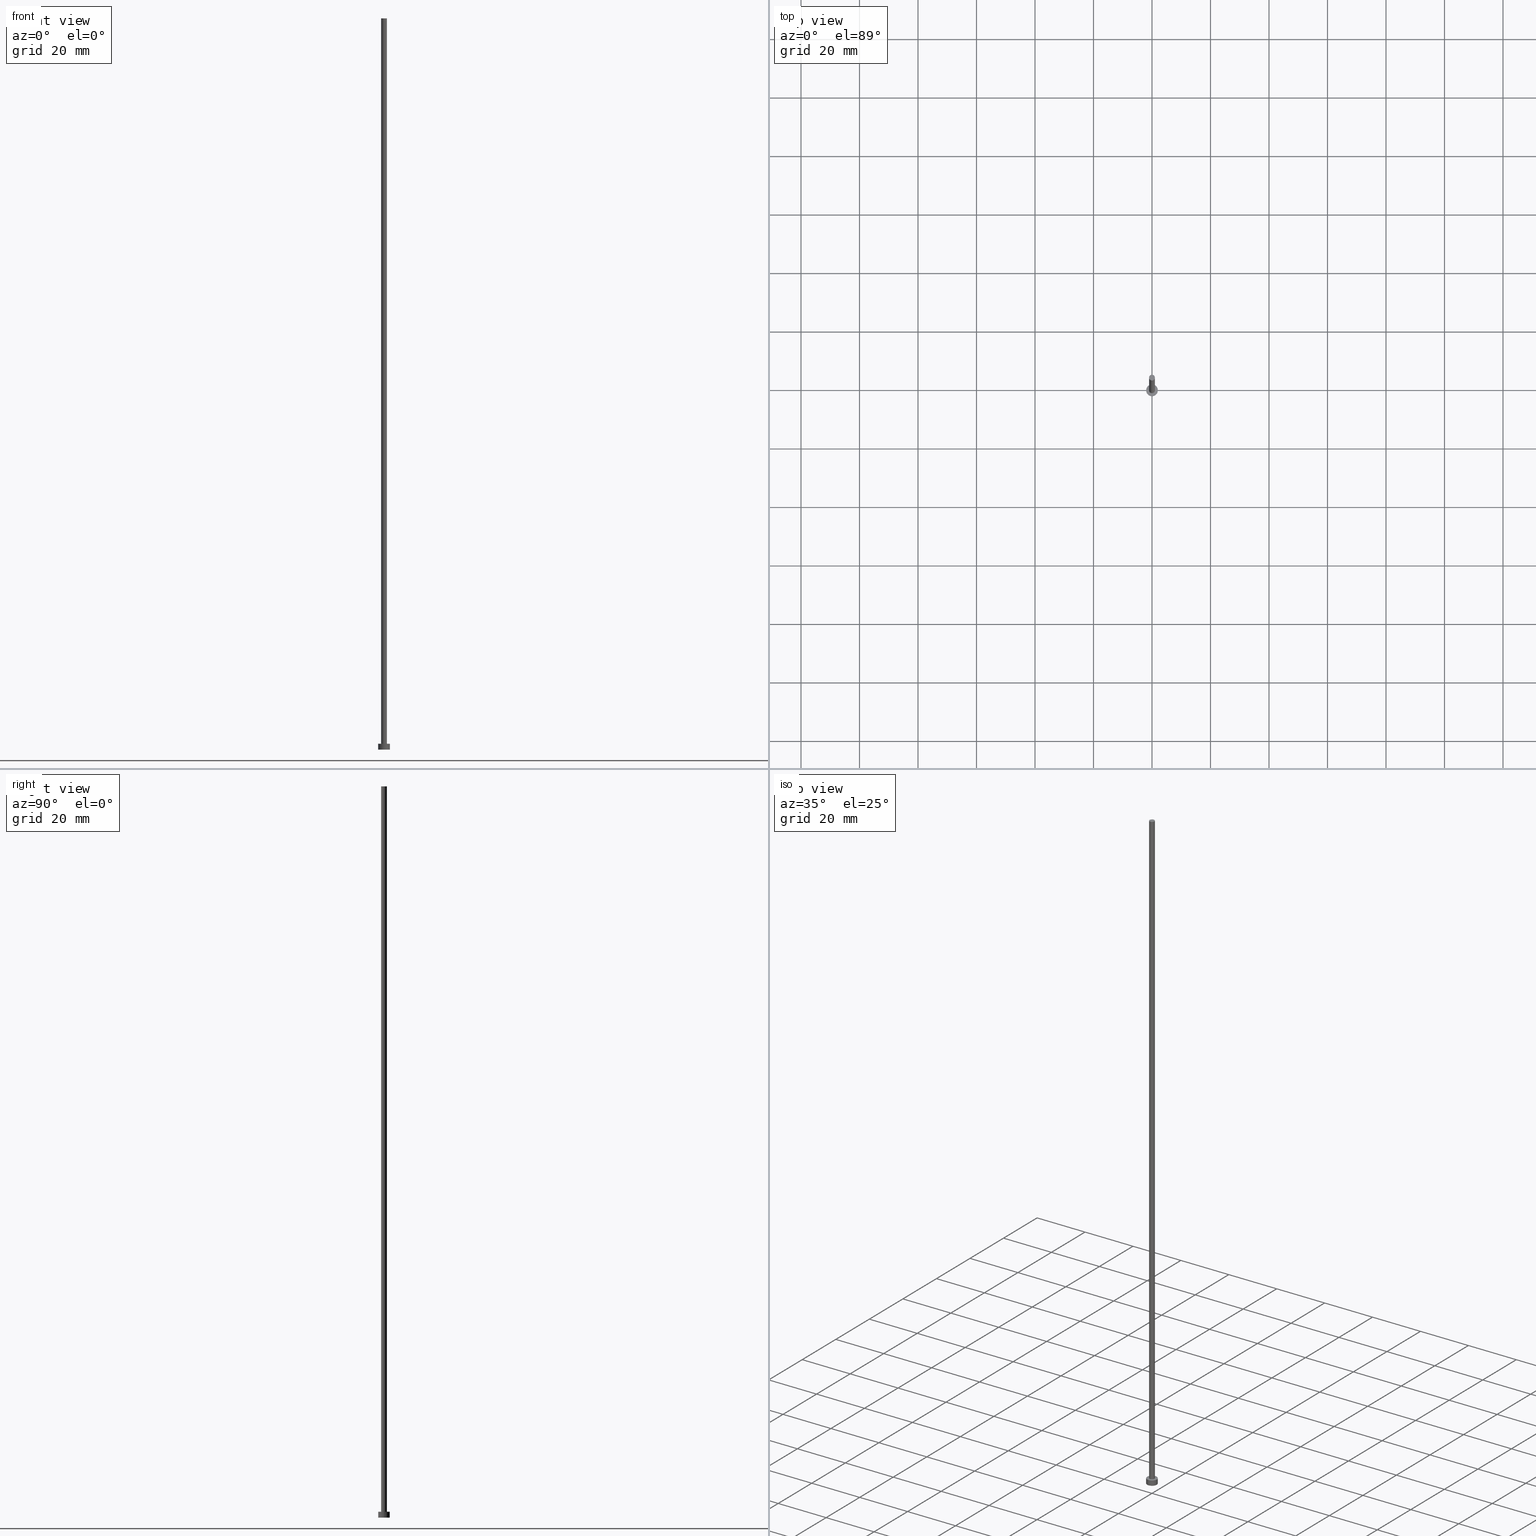
[diagram: canonical four-view strip — front | top / right | iso, engineering-drawing reading convention]
A machine part, canonical four-view strip (front | top / right | iso — engineering-drawing reading convention). The complete STEP part file that produces these views, byte-faithful:
ISO-10303-21;
HEADER;
FILE_DESCRIPTION (( 'STEP AP203' ),
    '1' );
FILE_NAME ('ce9a.STEP',
    '2023-02-13T16:43:20',
    ( '' ),
    ( '' ),
    'SwSTEP 2.0',
    'SolidWorks 2019',
    '' );
FILE_SCHEMA (( 'CONFIG_CONTROL_DESIGN' ));
ENDSEC;

DATA;
#1 = AXIS2_PLACEMENT_3D ( 'NONE', #23, #59, #104 ) ;
#2 = LINE ( 'NONE', #41, #48 ) ;
#3 = DIRECTION ( 'NONE',  ( 0.000000000000000000, 0.000000000000000000, 1.000000000000000000 ) ) ;
#4 = EDGE_CURVE ( 'NONE', #158, #203, #202, .T. ) ;
#5 = LOCAL_TIME ( 17, 43, 20.00000000000000000, #235 ) ;
#6 = LINE ( 'NONE', #75, #170 ) ;
#7 = DIRECTION ( 'NONE',  ( -0.000000000000000000, -0.000000000000000000, -1.000000000000000000 ) ) ;
#8 = ORIENTED_EDGE ( 'NONE', *, *, #209, .F. ) ;
#9 = ORIENTED_EDGE ( 'NONE', *, *, #179, .T. ) ;
#10 = PRODUCT_DEFINITION_SHAPE ( 'NONE', 'NONE',  #137 ) ;
#11 = ADVANCED_FACE ( 'NONE', ( #192 ), #196, .T. ) ;
#12 = CIRCLE ( 'NONE', #149, 1.000000000000000000 ) ;
#13 = PERSON_AND_ORGANIZATION_ROLE ( 'creator' ) ;
#14 = EDGE_LOOP ( 'NONE', ( #171, #220, #44, #183 ) ) ;
#15 = PERSON_AND_ORGANIZATION ( #230, #38 ) ;
#16 = APPROVAL_PERSON_ORGANIZATION ( #95, #160, #212 ) ;
#17 = AXIS2_PLACEMENT_3D ( 'NONE', #42, #85, #217 ) ;
#18 = PRODUCT_RELATED_PRODUCT_CATEGORY ( 'detail', '', ( #144 ) ) ;
#19 = EDGE_LOOP ( 'NONE', ( #198, #215, #136, #47 ) ) ;
#20 = DIRECTION ( 'NONE',  ( -0.000000000000000000, -0.000000000000000000, -1.000000000000000000 ) ) ;
#21 = EDGE_CURVE ( 'NONE', #203, #158, #79, .T. ) ;
#22 = DIRECTION ( 'NONE',  ( -1.000000000000000000, 0.000000000000000000, 0.000000000000000000 ) ) ;
#23 = CARTESIAN_POINT ( 'NONE',  ( 0.000000000000000000, 0.000000000000000000, 250.0000000000000000 ) ) ;
#24 = LOCAL_TIME ( 17, 43, 20.00000000000000000, #51 ) ;
#25 = DIRECTION ( 'NONE',  ( -1.000000000000000000, 0.000000000000000000, 0.000000000000000000 ) ) ;
#26 = CARTESIAN_POINT ( 'NONE',  ( 0.000000000000000000, 0.000000000000000000, 250.0000000000000000 ) ) ;
#27 = LINE ( 'NONE', #139, #43 ) ;
#28 = EDGE_CURVE ( 'NONE', #158, #134, #2, .T. ) ;
#29 = CARTESIAN_POINT ( 'NONE',  ( 0.000000000000000000, 0.000000000000000000, 250.0000000000000000 ) ) ;
#30 = ORIENTED_EDGE ( 'NONE', *, *, #4, .F. ) ;
#31 = EDGE_LOOP ( 'NONE', ( #30, #226, #246, #233 ) ) ;
#32 = PERSON_AND_ORGANIZATION_ROLE ( 'creator' ) ;
#33 = APPROVAL ( #244, 'NEUR�EN�' ) ;
#34 = DATE_AND_TIME ( #205, #5 ) ;
#35 = APPROVAL_DATE_TIME ( #117, #154 ) ;
#36 = UNCERTAINTY_MEASURE_WITH_UNIT (LENGTH_MEASURE( 1.000000000000000082E-05 ), #199, 'distance_accuracy_value', 'NONE');
#37 = AXIS2_PLACEMENT_3D ( 'NONE', #190, #188, #100 ) ;
#38 = ORGANIZATION ( 'NEUR�EN�', 'NEUR�EN�', '' ) ;
#39 = ORIENTED_EDGE ( 'NONE', *, *, #179, .F. ) ;
#40 = PLANE ( 'NONE',  #37 ) ;
#41 = CARTESIAN_POINT ( 'NONE',  ( 2.000000000000000000, 2.449293598294706414E-16, 2.000000000000000000 ) ) ;
#42 = CARTESIAN_POINT ( 'NONE',  ( 0.000000000000000000, 0.000000000000000000, 2.000000000000000000 ) ) ;
#43 = VECTOR ( 'NONE', #189, 1000.000000000000000 ) ;
#44 = ORIENTED_EDGE ( 'NONE', *, *, #209, .T. ) ;
#45 = ADVANCED_FACE ( 'NONE', ( #237, #55 ), #40, .T. ) ;
#46 = MANIFOLD_SOLID_BREP ( 'P�idat vysunut�m3', #114 ) ;
#47 = ORIENTED_EDGE ( 'NONE', *, *, #145, .T. ) ;
#48 = VECTOR ( 'NONE', #151, 1000.000000000000000 ) ;
#49 = APPROVAL_STATUS ( 'not_yet_approved' ) ;
#50 = EDGE_CURVE ( 'NONE', #107, #251, #174, .T. ) ;
#51 = COORDINATED_UNIVERSAL_TIME_OFFSET ( 1, 0, .AHEAD. ) ;
#52 = CIRCLE ( 'NONE', #132, 2.000000000000000000 ) ;
#53 = LOCAL_TIME ( 17, 43, 20.00000000000000000, #146 ) ;
#54 = CC_DESIGN_DATE_AND_TIME_ASSIGNMENT ( #97, #128, ( #137 ) ) ;
#55 = FACE_OUTER_BOUND ( 'NONE', #201, .T. ) ;
#56 = DIRECTION ( 'NONE',  ( 1.000000000000000000, 0.000000000000000000, 0.000000000000000000 ) ) ;
#57 = APPLICATION_CONTEXT ( 'configuration controlled 3d designs of mechanical parts and assemblies' ) ;
#58 = AXIS2_PLACEMENT_3D ( 'NONE', #150, #236, #135 ) ;
#59 = DIRECTION ( 'NONE',  ( 0.000000000000000000, 0.000000000000000000, 1.000000000000000000 ) ) ;
#60 = CARTESIAN_POINT ( 'NONE',  ( 0.000000000000000000, 0.000000000000000000, 2.000000000000000000 ) ) ;
#61 = DIRECTION ( 'NONE',  ( -0.000000000000000000, -0.000000000000000000, -1.000000000000000000 ) ) ;
#62 = EDGE_CURVE ( 'NONE', #251, #107, #67, .T. ) ;
#63 = ORIENTED_EDGE ( 'NONE', *, *, #62, .F. ) ;
#64 = PERSON_AND_ORGANIZATION ( #230, #38 ) ;
#65 = CC_DESIGN_PERSON_AND_ORGANIZATION_ASSIGNMENT ( #184, #13, ( #126 ) ) ;
#66 = AXIS2_PLACEMENT_3D ( 'NONE', #106, #101, #223 ) ;
#67 = CIRCLE ( 'NONE', #214, 1.000000000000000000 ) ;
#68 = APPROVAL_PERSON_ORGANIZATION ( #15, #154, #169 ) ;
#69 = APPLICATION_CONTEXT ( 'configuration controlled 3d designs of mechanical parts and assemblies' ) ;
#70 = CC_DESIGN_DATE_AND_TIME_ASSIGNMENT ( #208, #186, ( #103 ) ) ;
#71 = APPROVAL_STATUS ( 'not_yet_approved' ) ;
#72 = PERSON_AND_ORGANIZATION ( #230, #38 ) ;
#73 = SECURITY_CLASSIFICATION_LEVEL ( 'unclassified' ) ;
#74 = CC_DESIGN_PERSON_AND_ORGANIZATION_ASSIGNMENT ( #93, #252, ( #126 ) ) ;
#75 = CARTESIAN_POINT ( 'NONE',  ( -2.000000000000000000, 0.000000000000000000, 2.000000000000000000 ) ) ;
#76 = VERTEX_POINT ( 'NONE', #127 ) ;
#77 = CARTESIAN_POINT ( 'NONE',  ( -1.000000000000000000, 0.000000000000000000, 250.0000000000000000 ) ) ;
#78 = CC_DESIGN_PERSON_AND_ORGANIZATION_ASSIGNMENT ( #72, #255, ( #103 ) ) ;
#79 = CIRCLE ( 'NONE', #213, 2.000000000000000000 ) ;
#80 = DIRECTION ( 'NONE',  ( 1.000000000000000000, 0.000000000000000000, 0.000000000000000000 ) ) ;
#81 = CARTESIAN_POINT ( 'NONE',  ( 0.000000000000000000, 0.000000000000000000, 250.0000000000000000 ) ) ;
#82 = CARTESIAN_POINT ( 'NONE',  ( 0.000000000000000000, 0.000000000000000000, 2.000000000000000000 ) ) ;
#83 = CARTESIAN_POINT ( 'NONE',  ( 0.000000000000000000, 0.000000000000000000, 250.0000000000000000 ) ) ;
#84 = VECTOR ( 'NONE', #241, 1000.000000000000000 ) ;
#85 = DIRECTION ( 'NONE',  ( 0.000000000000000000, 0.000000000000000000, 1.000000000000000000 ) ) ;
#86 = ADVANCED_FACE ( 'NONE', ( #249 ), #195, .F. ) ;
#87 = APPLICATION_PROTOCOL_DEFINITION ( 'international standard', 'config_control_design', 1994, #57 ) ;
#88 = ORIENTED_EDGE ( 'NONE', *, *, #166, .F. ) ;
#89 = DATE_AND_TIME ( #180, #96 ) ;
#90 = AXIS2_PLACEMENT_3D ( 'NONE', #119, #147, #116 ) ;
#91 = CC_DESIGN_SECURITY_CLASSIFICATION ( #103, ( #126 ) ) ;
#92 = CC_DESIGN_PERSON_AND_ORGANIZATION_ASSIGNMENT ( #64, #143, ( #144 ) ) ;
#93 = PERSON_AND_ORGANIZATION ( #230, #38 ) ;
#94 = CARTESIAN_POINT ( 'NONE',  ( 2.000000000000000000, 2.449293598294706414E-16, 2.000000000000000000 ) ) ;
#95 = PERSON_AND_ORGANIZATION ( #230, #38 ) ;
#96 = LOCAL_TIME ( 17, 43, 20.00000000000000000, #109 ) ;
#97 = DATE_AND_TIME ( #181, #254 ) ;
#98 = CYLINDRICAL_SURFACE ( 'NONE', #58, 2.000000000000000000 ) ;
#99 = APPROVAL_PERSON_ORGANIZATION ( #157, #33, #227 ) ;
#100 = DIRECTION ( 'NONE',  ( 1.000000000000000000, 0.000000000000000000, -0.000000000000000000 ) ) ;
#101 = DIRECTION ( 'NONE',  ( 0.000000000000000000, 0.000000000000000000, 1.000000000000000000 ) ) ;
#102 = CARTESIAN_POINT ( 'NONE',  ( -2.000000000000000000, 0.000000000000000000, 2.000000000000000000 ) ) ;
#103 = SECURITY_CLASSIFICATION ( '', '', #73 ) ;
#104 = DIRECTION ( 'NONE',  ( 1.000000000000000000, 0.000000000000000000, 0.000000000000000000 ) ) ;
#105 = DIRECTION ( 'NONE',  ( 0.000000000000000000, 0.000000000000000000, 1.000000000000000000 ) ) ;
#106 = CARTESIAN_POINT ( 'NONE',  ( 0.000000000000000000, 0.000000000000000000, 0.000000000000000000 ) ) ;
#107 = VERTEX_POINT ( 'NONE', #238 ) ;
#108 = CC_DESIGN_PERSON_AND_ORGANIZATION_ASSIGNMENT ( #131, #32, ( #137 ) ) ;
#109 = COORDINATED_UNIVERSAL_TIME_OFFSET ( 1, 0, .AHEAD. ) ;
#110 = LINE ( 'NONE', #163, #84 ) ;
#111 = AXIS2_PLACEMENT_3D ( 'NONE', #83, #138, #175 ) ;
#112 = APPROVAL_DATE_TIME ( #34, #160 ) ;
#113 = DIRECTION ( 'NONE',  ( -1.000000000000000000, 0.000000000000000000, 0.000000000000000000 ) ) ;
#114 = CLOSED_SHELL ( 'NONE', ( #11, #182, #221, #45, #86, #133, #216 ) ) ;
#115 = ORIENTED_EDGE ( 'NONE', *, *, #50, .T. ) ;
#116 = DIRECTION ( 'NONE',  ( 1.000000000000000000, 0.000000000000000000, 0.000000000000000000 ) ) ;
#117 = DATE_AND_TIME ( #129, #24 ) ;
#118 = DESIGN_CONTEXT ( 'detailed design', #57, 'design' ) ;
#119 = CARTESIAN_POINT ( 'NONE',  ( 0.000000000000000000, 0.000000000000000000, 0.000000000000000000 ) ) ;
#120 = ORIENTED_EDGE ( 'NONE', *, *, #4, .T. ) ;
#121 = DIRECTION ( 'NONE',  ( 1.000000000000000000, 0.000000000000000000, 0.000000000000000000 ) ) ;
#122 = AXIS2_PLACEMENT_3D ( 'NONE', #173, #3, #80 ) ;
#123 = FACE_OUTER_BOUND ( 'NONE', #31, .T. ) ;
#124 = ORIENTED_EDGE ( 'NONE', *, *, #253, .T. ) ;
#125 = EDGE_LOOP ( 'NONE', ( #142, #88 ) ) ;
#126 = PRODUCT_DEFINITION_FORMATION_WITH_SPECIFIED_SOURCE ( 'LIBOVOLN�', '', #144, .NOT_KNOWN. ) ;
#127 = CARTESIAN_POINT ( 'NONE',  ( -2.000000000000000000, 0.000000000000000000, 0.000000000000000000 ) ) ;
#128 = DATE_TIME_ROLE ( 'creation_date' ) ;
#129 = CALENDAR_DATE ( 2023, 13, 2 ) ;
#130 = ADVANCED_BREP_SHAPE_REPRESENTATION ( 'ce9a', ( #46, #219 ), #207 ) ;
#131 = PERSON_AND_ORGANIZATION ( #230, #38 ) ;
#132 = AXIS2_PLACEMENT_3D ( 'NONE', #211, #172, #56 ) ;
#133 = ADVANCED_FACE ( 'NONE', ( #193 ), #197, .T. ) ;
#134 = VERTEX_POINT ( 'NONE', #185 ) ;
#135 = DIRECTION ( 'NONE',  ( -1.000000000000000000, 0.000000000000000000, 0.000000000000000000 ) ) ;
#136 = ORIENTED_EDGE ( 'NONE', *, *, #248, .T. ) ;
#137 = PRODUCT_DEFINITION ( 'NEZN�M�', '', #126, #118 ) ;
#138 = DIRECTION ( 'NONE',  ( 0.000000000000000000, 0.000000000000000000, 1.000000000000000000 ) ) ;
#139 = CARTESIAN_POINT ( 'NONE',  ( -1.000000000000000000, 0.000000000000000000, 250.0000000000000000 ) ) ;
#140 = CARTESIAN_POINT ( 'NONE',  ( 0.000000000000000000, 0.000000000000000000, 2.000000000000000000 ) ) ;
#141 = CIRCLE ( 'NONE', #1, 1.000000000000000000 ) ;
#142 = ORIENTED_EDGE ( 'NONE', *, *, #145, .F. ) ;
#143 = PERSON_AND_ORGANIZATION_ROLE ( 'design_owner' ) ;
#144 = PRODUCT ( 'ce9a', 'ce9a', '', ( #155 ) ) ;
#145 = EDGE_CURVE ( 'NONE', #76, #134, #52, .T. ) ;
#146 = COORDINATED_UNIVERSAL_TIME_OFFSET ( 1, 0, .AHEAD. ) ;
#147 = DIRECTION ( 'NONE',  ( 0.000000000000000000, 0.000000000000000000, 1.000000000000000000 ) ) ;
#148 = CALENDAR_DATE ( 2023, 13, 2 ) ;
#149 = AXIS2_PLACEMENT_3D ( 'NONE', #81, #240, #121 ) ;
#150 = CARTESIAN_POINT ( 'NONE',  ( 0.000000000000000000, 0.000000000000000000, 2.000000000000000000 ) ) ;
#151 = DIRECTION ( 'NONE',  ( -0.000000000000000000, -0.000000000000000000, -1.000000000000000000 ) ) ;
#152 = DIRECTION ( 'NONE',  ( -0.000000000000000000, -0.000000000000000000, -1.000000000000000000 ) ) ;
#153 = CYLINDRICAL_SURFACE ( 'NONE', #225, 2.000000000000000000 ) ;
#154 = APPROVAL ( #49, 'NEUR�EN�' ) ;
#155 = MECHANICAL_CONTEXT ( 'NONE', #69, 'mechanical' ) ;
#156 = CC_DESIGN_APPROVAL ( #33, ( #137 ) ) ;
#157 = PERSON_AND_ORGANIZATION ( #230, #38 ) ;
#158 = VERTEX_POINT ( 'NONE', #94 ) ;
#159 = APPROVAL_DATE_TIME ( #89, #33 ) ;
#160 = APPROVAL ( #71, 'NEUR�EN�' ) ;
#161 = EDGE_LOOP ( 'NONE', ( #234, #9 ) ) ;
#162 =( NAMED_UNIT ( * ) PLANE_ANGLE_UNIT ( ) SI_UNIT ( $, .RADIAN. ) );
#163 = CARTESIAN_POINT ( 'NONE',  ( 1.000000000000000000, 1.224646799147353207E-16, 250.0000000000000000 ) ) ;
#164 = AXIS2_PLACEMENT_3D ( 'NONE', #29, #7, #113 ) ;
#165 = VERTEX_POINT ( 'NONE', #77 ) ;
#166 = EDGE_CURVE ( 'NONE', #134, #76, #206, .T. ) ;
#167 = ORIENTED_EDGE ( 'NONE', *, *, #50, .F. ) ;
#168 = COORDINATED_UNIVERSAL_TIME_OFFSET ( 1, 0, .AHEAD. ) ;
#169 = APPROVAL_ROLE ( '' ) ;
#170 = VECTOR ( 'NONE', #20, 1000.000000000000000 ) ;
#171 = ORIENTED_EDGE ( 'NONE', *, *, #253, .F. ) ;
#172 = DIRECTION ( 'NONE',  ( 0.000000000000000000, 0.000000000000000000, 1.000000000000000000 ) ) ;
#173 = CARTESIAN_POINT ( 'NONE',  ( 0.000000000000000000, 0.000000000000000000, 2.000000000000000000 ) ) ;
#174 = CIRCLE ( 'NONE', #122, 1.000000000000000000 ) ;
#175 = DIRECTION ( 'NONE',  ( 1.000000000000000000, 0.000000000000000000, -0.000000000000000000 ) ) ;
#176 = DIRECTION ( 'NONE',  ( 1.000000000000000000, 0.000000000000000000, 0.000000000000000000 ) ) ;
#177 = FACE_OUTER_BOUND ( 'NONE', #161, .T. ) ;
#178 = CARTESIAN_POINT ( 'NONE',  ( -1.000000000000000000, 0.000000000000000000, 2.000000000000000000 ) ) ;
#179 = EDGE_CURVE ( 'NONE', #231, #165, #12, .T. ) ;
#180 = CALENDAR_DATE ( 2023, 13, 2 ) ;
#181 = CALENDAR_DATE ( 2023, 13, 2 ) ;
#182 = ADVANCED_FACE ( 'NONE', ( #123 ), #153, .T. ) ;
#183 = ORIENTED_EDGE ( 'NONE', *, *, #62, .T. ) ;
#184 = PERSON_AND_ORGANIZATION ( #230, #38 ) ;
#185 = CARTESIAN_POINT ( 'NONE',  ( 2.000000000000000000, 2.449293598294706414E-16, 0.000000000000000000 ) ) ;
#186 = DATE_TIME_ROLE ( 'classification_date' ) ;
#187 = ORIENTED_EDGE ( 'NONE', *, *, #21, .T. ) ;
#188 = DIRECTION ( 'NONE',  ( 0.000000000000000000, 0.000000000000000000, 1.000000000000000000 ) ) ;
#189 = DIRECTION ( 'NONE',  ( -0.000000000000000000, -0.000000000000000000, -1.000000000000000000 ) ) ;
#190 = CARTESIAN_POINT ( 'NONE',  ( 0.000000000000000000, 0.000000000000000000, 2.000000000000000000 ) ) ;
#191 = AXIS2_PLACEMENT_3D ( 'NONE', #26, #152, #22 ) ;
#192 = FACE_OUTER_BOUND ( 'NONE', #250, .T. ) ;
#193 = FACE_OUTER_BOUND ( 'NONE', #14, .T. ) ;
#194 = CC_DESIGN_APPROVAL ( #154, ( #103 ) ) ;
#195 = PLANE ( 'NONE',  #66 ) ;
#196 = CYLINDRICAL_SURFACE ( 'NONE', #191, 1.000000000000000000 ) ;
#197 = CYLINDRICAL_SURFACE ( 'NONE', #164, 1.000000000000000000 ) ;
#198 = ORIENTED_EDGE ( 'NONE', *, *, #28, .F. ) ;
#199 =( LENGTH_UNIT ( ) NAMED_UNIT ( * ) SI_UNIT ( .MILLI., .METRE. ) );
#200 =( NAMED_UNIT ( * ) SI_UNIT ( $, .STERADIAN. ) SOLID_ANGLE_UNIT ( ) );
#201 = EDGE_LOOP ( 'NONE', ( #187, #120 ) ) ;
#202 = CIRCLE ( 'NONE', #17, 2.000000000000000000 ) ;
#203 = VERTEX_POINT ( 'NONE', #102 ) ;
#204 = CARTESIAN_POINT ( 'NONE',  ( 0.000000000000000000, 0.000000000000000000, 0.000000000000000000 ) ) ;
#205 = CALENDAR_DATE ( 2023, 13, 2 ) ;
#206 = CIRCLE ( 'NONE', #90, 2.000000000000000000 ) ;
#207 =( GEOMETRIC_REPRESENTATION_CONTEXT ( 3 ) GLOBAL_UNCERTAINTY_ASSIGNED_CONTEXT ( ( #36 ) ) GLOBAL_UNIT_ASSIGNED_CONTEXT ( ( #199, #162, #200 ) ) REPRESENTATION_CONTEXT ( 'NONE', 'WORKASPACE' ) );
#208 = DATE_AND_TIME ( #148, #53 ) ;
#209 = EDGE_CURVE ( 'NONE', #165, #251, #27, .T. ) ;
#210 = SHAPE_DEFINITION_REPRESENTATION ( #10, #130 ) ;
#211 = CARTESIAN_POINT ( 'NONE',  ( 0.000000000000000000, 0.000000000000000000, 0.000000000000000000 ) ) ;
#212 = APPROVAL_ROLE ( '' ) ;
#213 = AXIS2_PLACEMENT_3D ( 'NONE', #60, #222, #176 ) ;
#214 = AXIS2_PLACEMENT_3D ( 'NONE', #82, #242, #245 ) ;
#215 = ORIENTED_EDGE ( 'NONE', *, *, #21, .F. ) ;
#216 = ADVANCED_FACE ( 'NONE', ( #177 ), #218, .T. ) ;
#217 = DIRECTION ( 'NONE',  ( 1.000000000000000000, 0.000000000000000000, 0.000000000000000000 ) ) ;
#218 = PLANE ( 'NONE',  #111 ) ;
#219 = AXIS2_PLACEMENT_3D ( 'NONE', #204, #105, #228 ) ;
#220 = ORIENTED_EDGE ( 'NONE', *, *, #232, .F. ) ;
#221 = ADVANCED_FACE ( 'NONE', ( #224 ), #98, .T. ) ;
#222 = DIRECTION ( 'NONE',  ( 0.000000000000000000, 0.000000000000000000, 1.000000000000000000 ) ) ;
#223 = DIRECTION ( 'NONE',  ( 1.000000000000000000, 0.000000000000000000, -0.000000000000000000 ) ) ;
#224 = FACE_OUTER_BOUND ( 'NONE', #19, .T. ) ;
#225 = AXIS2_PLACEMENT_3D ( 'NONE', #140, #61, #25 ) ;
#226 = ORIENTED_EDGE ( 'NONE', *, *, #28, .T. ) ;
#227 = APPROVAL_ROLE ( '' ) ;
#228 = DIRECTION ( 'NONE',  ( 1.000000000000000000, 0.000000000000000000, 0.000000000000000000 ) ) ;
#229 = EDGE_LOOP ( 'NONE', ( #63, #167 ) ) ;
#230 = PERSON ( 'NEUR�EN�', 'NEUR�EN�', 'NEUR�EN�', ('NEUR�EN�'), ('NEUR�EN�'), ('NEUR�EN�') ) ;
#231 = VERTEX_POINT ( 'NONE', #239 ) ;
#232 = EDGE_CURVE ( 'NONE', #165, #231, #141, .T. ) ;
#233 = ORIENTED_EDGE ( 'NONE', *, *, #248, .F. ) ;
#234 = ORIENTED_EDGE ( 'NONE', *, *, #232, .T. ) ;
#235 = COORDINATED_UNIVERSAL_TIME_OFFSET ( 1, 0, .AHEAD. ) ;
#236 = DIRECTION ( 'NONE',  ( -0.000000000000000000, -0.000000000000000000, -1.000000000000000000 ) ) ;
#237 = FACE_BOUND ( 'NONE', #229, .T. ) ;
#238 = CARTESIAN_POINT ( 'NONE',  ( 1.000000000000000000, 1.224646799147353207E-16, 2.000000000000000000 ) ) ;
#239 = CARTESIAN_POINT ( 'NONE',  ( 1.000000000000000000, 1.224646799147353207E-16, 250.0000000000000000 ) ) ;
#240 = DIRECTION ( 'NONE',  ( 0.000000000000000000, 0.000000000000000000, 1.000000000000000000 ) ) ;
#241 = DIRECTION ( 'NONE',  ( -0.000000000000000000, -0.000000000000000000, -1.000000000000000000 ) ) ;
#242 = DIRECTION ( 'NONE',  ( 0.000000000000000000, 0.000000000000000000, 1.000000000000000000 ) ) ;
#243 = CC_DESIGN_APPROVAL ( #160, ( #126 ) ) ;
#244 = APPROVAL_STATUS ( 'not_yet_approved' ) ;
#245 = DIRECTION ( 'NONE',  ( 1.000000000000000000, 0.000000000000000000, 0.000000000000000000 ) ) ;
#246 = ORIENTED_EDGE ( 'NONE', *, *, #166, .T. ) ;
#247 = APPLICATION_PROTOCOL_DEFINITION ( 'international standard', 'config_control_design', 1994, #69 ) ;
#248 = EDGE_CURVE ( 'NONE', #203, #76, #6, .T. ) ;
#249 = FACE_OUTER_BOUND ( 'NONE', #125, .T. ) ;
#250 = EDGE_LOOP ( 'NONE', ( #39, #124, #115, #8 ) ) ;
#251 = VERTEX_POINT ( 'NONE', #178 ) ;
#252 = PERSON_AND_ORGANIZATION_ROLE ( 'design_supplier' ) ;
#253 = EDGE_CURVE ( 'NONE', #231, #107, #110, .T. ) ;
#254 = LOCAL_TIME ( 17, 43, 20.00000000000000000, #168 ) ;
#255 = PERSON_AND_ORGANIZATION_ROLE ( 'classification_officer' ) ;
ENDSEC;
END-ISO-10303-21;
